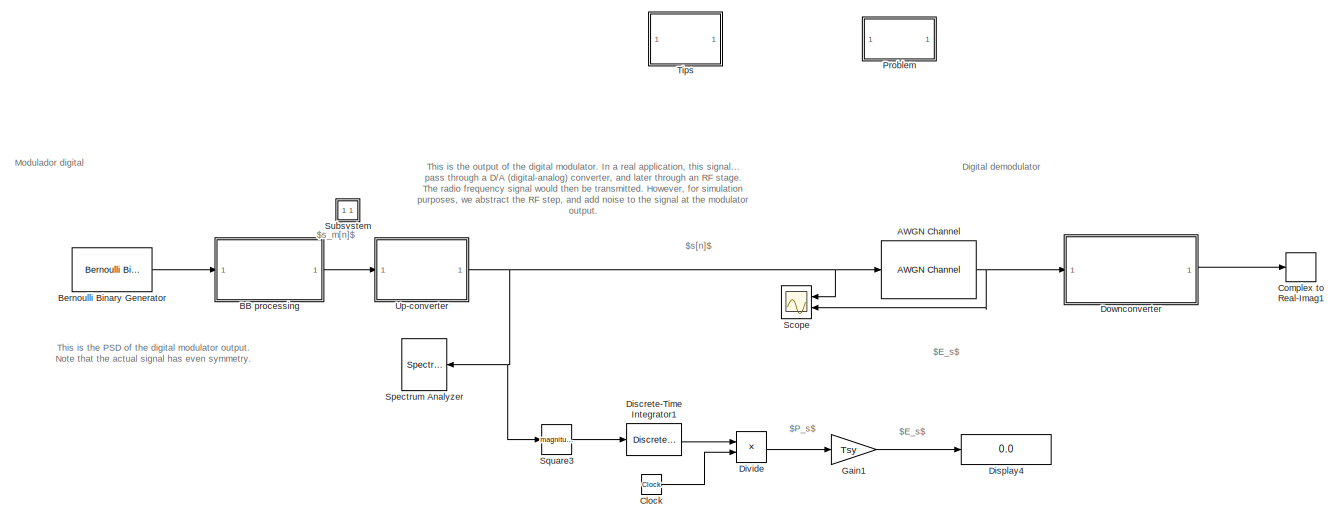
[diagram: root canvas - part 1/2, center side, full height]
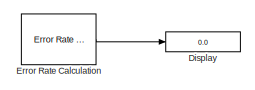
[diagram: root canvas - part 2/2, middle right region]
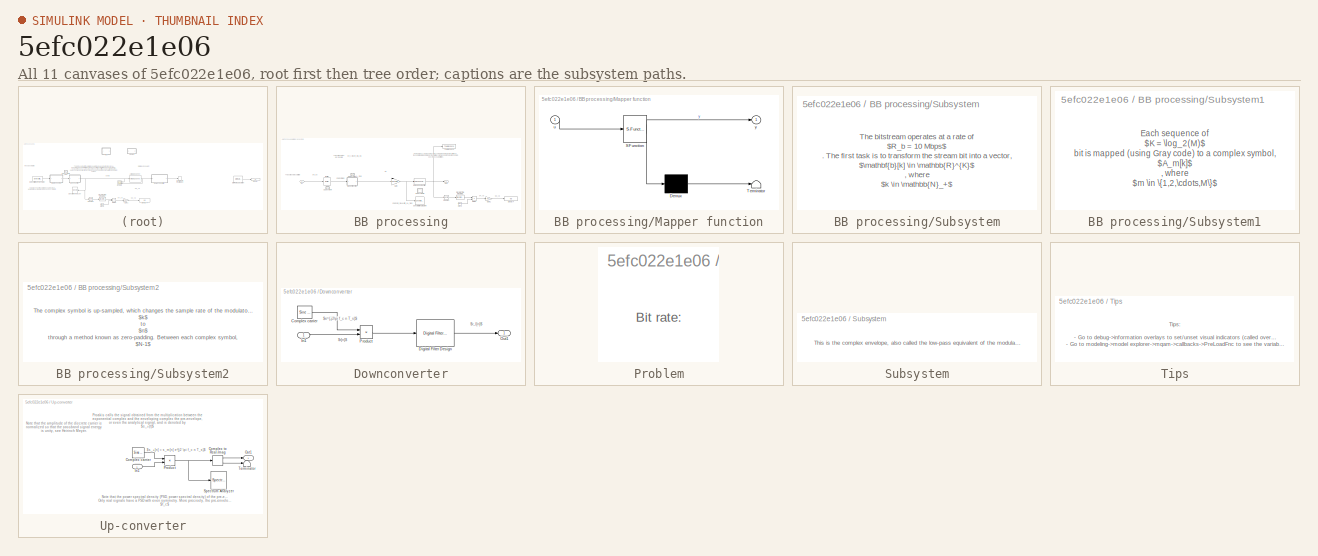
[diagram: thumbnail index - all 11 canvases of the model, root first then tree order]
MODEL slx_5efc022e1e06
KIND model
CONFIG AbsTol = auto
CONFIG EnableMultiTasking = off
CONFIG FixedStep = auto
CONFIG InitFcn = phi = 0; % phase offset
CONFIG MaxStep = auto
CONFIG MinStep = auto
CONFIG PreLoadFcn = %%% model parameters %%%\n\nRb = 10e6; % bit rate\nTb = 1/Rb; % bit interval\n\nM = 256; % constelation alphabet\nNb = log2(M); % number of bit per symbol\n\nRsy = Rb/Nb; % symbol rate\nTsy = 1/Rsy; % symbol time\n\nN = 100; % number of samples per symbol\n\nRsamp = N*Rsy; % sampling rate\nTsamp = 1/Rsamp; % samping interval\n\nfc = 1/(4*Tsamp); % carrier frequency\n\nEg = 5; % baseband pulse shaping energy\n\n%%% gr...<+447ch>
CONFIG RelTol = 1e-3
CONFIG SampleTimeConstraint = Unconstrained
CONFIG Solver = VariableStepAuto
CONFIG SolverName = VariableStepAuto
CONFIG StartTime = 0.0
CONFIG StopTime = 10
BLOCK [Reference] AWGN Channel  REF=commchan3/AWGN
Channel
  Commented = through
  Ports = [1, 1]
  SourceBlock = commchan3/AWGN\nChannel
  SourceProductBaseCode = CM
  SourceType = AWGN Channel
  UserDataPersistent = on
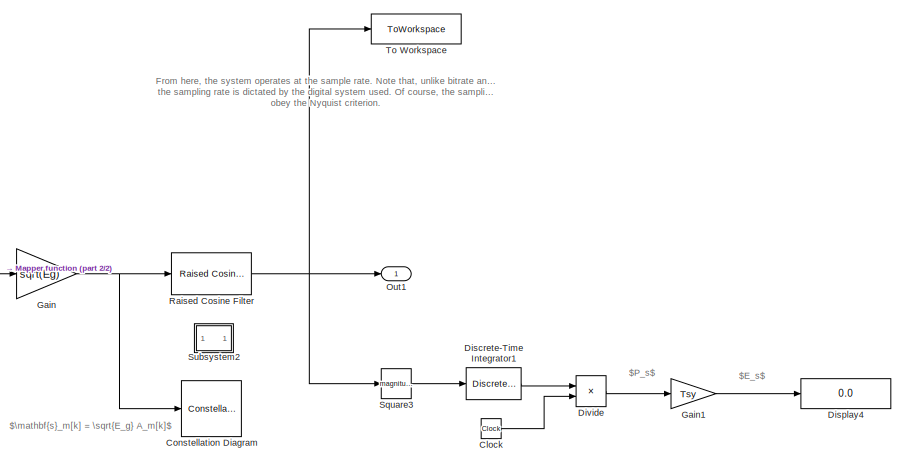
[diagram: BB processing - part 1/2, right side, full height]
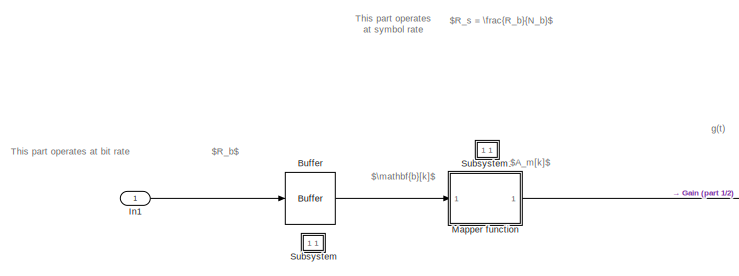
[diagram: BB processing - part 2/2, middle left region]
BLOCK [SubSystem] BB processing
  Ports = [1, 1]
  RequestExecContextInheritance = off
BLOCK [Buffer] BB processing/Buffer
  N = Nb
  OutputFrames = off
BLOCK [Clock] BB processing/Clock
BLOCK [ConstellationDiagram] BB processing/Constellation Diagram
  Ports = [1]
  ScopeSpecificationString = comm.scopes.ConstellationDiagramBlockCfg('CurrentConfiguration', extmgr.ConfigurationSet(extmgr.Configuration('Core','General UI',true,'FigureColor',[0.15686 0.15686 0.15686]),extmgr.Configuration('Core','Source UI',true),extmgr.Configuration('Sources','WiredSimulink',true),extmgr.Configuration('Sources','File',false),extmgr.Configuration('Sources','Workspace',false),extmgr.Configuration('Sources'...<+1511ch>
BLOCK [DiscreteIntegrator] BB processing/Discrete-Time Integrator1
  ICPrevOutput = DiscIntNeverNeededParam
  ICPrevScaledInput = DiscIntNeverNeededParam
  InitialConditionSetting = Auto
  IntegratorMethod = Integration: Trapezoidal
  Ports = [1, 1]
  SampleTime = -1
BLOCK [Display] BB processing/Display4
  Decimation = 1
  Ports = [1]
BLOCK [Product] BB processing/Divide
  Inputs = */
  Ports = [2, 1]
BLOCK [Gain] BB processing/Gain
  Gain = sqrt(Eg)
BLOCK [Gain] BB processing/Gain1
  Gain = Tsy
BLOCK [Inport] BB processing/In1
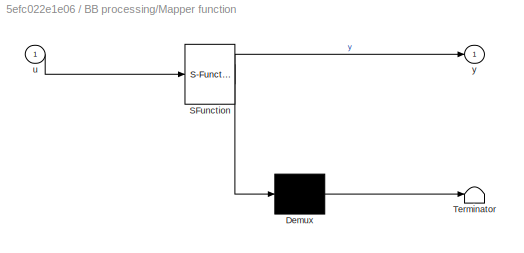
BLOCK [SubSystem] BB processing/Mapper function
  ErrorFcn = Stateflow.Translate.translate
  PermitHierarchicalResolution = ExplicitOnly
  Ports = [1, 1]
  RequestExecContextInheritance = off
  SFBlockType = MATLAB Function
  TreatAsAtomicUnit = on
BLOCK [Demux] BB processing/Mapper function/ Demux 
  Outputs = 1
  Ports = [1, 1]
BLOCK [S-Function] BB processing/Mapper function/ SFunction 
  EnableBusSupport = on
  FunctionName = sf_sfun
  Parameters = M,gray_codes
  PortCounts = [1 2]
  Ports = [1, 2]
  SFcnIsStateOwnerBlock = off
  SFunctionDeploymentMode = off
  Tag = Stateflow S-Function 2
BLOCK [Terminator] BB processing/Mapper function/ Terminator 
BLOCK [Inport] BB processing/Mapper function/u
BLOCK [Outport] BB processing/Mapper function/y
BLOCK [Outport] BB processing/Out1
BLOCK [Reference] BB processing/Raised Cosine Filter  REF=commfilt2/Raised Cosine
Transmit Filter
  Ports = [1, 1]
  SourceBlock = commfilt2/Raised Cosine\nTransmit Filter
  SourceProductBaseCode = CM
  SourceType = Raised Cosine Transmit Filter
BLOCK [Math] BB processing/Square3
  Operator = magnitude^2
  Ports = [1, 1]
BLOCK [SubSystem] BB processing/Subsystem
  Ports = []
  RequestExecContextInheritance = off
BLOCK [SubSystem] BB processing/Subsystem1
  Ports = []
  RequestExecContextInheritance = off
BLOCK [SubSystem] BB processing/Subsystem2
  Ports = []
  RequestExecContextInheritance = off
BLOCK [ToWorkspace] BB processing/To Workspace
  FixptAsFi = on
  MaxDataPoints = inf
  Ports = [1]
  SampleTime = -1
  SaveFormat = Timeseries
  VariableName = simout
BLOCK [Reference] Bernoulli Binary Generator  REF=commrandsrc3/Bernoulli Binary
Generator
  Ports = [0, 1]
  SourceBlock = commrandsrc3/Bernoulli Binary\nGenerator
  SourceProductBaseCode = CM
  SourceType = Bernoulli Binary Generator
BLOCK [Clock] Clock
BLOCK [ComplexToRealImag] Complex to Real-Imag1
  Ports = [1, 2]
BLOCK [DiscreteIntegrator] Discrete-Time Integrator1
  ICPrevOutput = DiscIntNeverNeededParam
  ICPrevScaledInput = DiscIntNeverNeededParam
  InitialConditionSetting = Auto
  IntegratorMethod = Integration: Trapezoidal
  Ports = [1, 1]
  SampleTime = -1
BLOCK [Display] Display
  Decimation = 1
  Ports = [1]
BLOCK [Display] Display4
  Decimation = 1
  Ports = [1]
BLOCK [Product] Divide
  Inputs = */
  Ports = [2, 1]
BLOCK [SubSystem] Downconverter
  Ports = [1, 1]
  RequestExecContextInheritance = off
BLOCK [Reference] Downconverter/Complex carrier  REF=dspsrcs4/Sine Wave
  Ports = [0, 1]
  SourceBlock = dspsrcs4/Sine Wave
  SourceProductBaseCode = DS
  SourceType = Sine Wave
BLOCK [Reference] Downconverter/Digital Filter Design  REF=dsparch4/Digital
Filter Design
  Ports = [1, 1]
  SourceBlock = dsparch4/Digital\nFilter Design
  SourceProductBaseCode = DS
  SourceType = Digital Filter Design
  UserDataPersistent = on
BLOCK [Inport] Downconverter/In1
BLOCK [Outport] Downconverter/Out1
BLOCK [Product] Downconverter/Product
  Ports = [2, 1]
BLOCK [Reference] Error Rate Calculation  REF=commsink2/Error Rate
Calculation
  Commented = on
  Ports = [2, 1]
  SourceBlock = commsink2/Error Rate\nCalculation
  SourceProductBaseCode = CM
  SourceType = Error Rate Calculation
BLOCK [Gain] Gain1
  Gain = Tsy
BLOCK [SubSystem] Problem
  Ports = []
  RequestExecContextInheritance = off
BLOCK [Scope] Scope
  Floating = off
  NumInputPorts = 2
  Ports = [2]
  ScopeSpecificationString = Simulink.scopes.TimeScopeBlockCfg('CurrentConfiguration', extmgr.ConfigurationSet(extmgr.Configuration('Core','General UI',true),extmgr.Configuration('Core','Source UI',true),extmgr.Configuration('Sources','WiredSimulink',true,'DataLoggingVariableName','ScopeData1'),extmgr.Configuration('Visuals','Time Domain',true,'SerializedDisplays',{struct('MinYLimReal','-5.56615','MaxYLimReal','5.56629','YLab...<+1499ch>
BLOCK [SpectrumAnalyzer] Spectrum Analyzer
  Commented = on
  Ports = [1]
  ScopeSpecificationString = spbscopes.SpectrumAnalyzerBlockCfg('CurrentConfiguration', extmgr.ConfigurationSet(extmgr.Configuration('Core','General UI',true),extmgr.Configuration('Core','Source UI',true),extmgr.Configuration('Sources','WiredSimulink',true),extmgr.Configuration('Sources','Simulink',false),extmgr.Configuration('Sources','File',false),extmgr.Configuration('Sources','Workspace',false),extmgr.Configuration('Sourc...<+2852ch>
BLOCK [Math] Square3
  Operator = magnitude^2
  Ports = [1, 1]
BLOCK [SubSystem] Subsystem
  Ports = []
  RequestExecContextInheritance = off
BLOCK [SubSystem] Tips
  Ports = []
  RequestExecContextInheritance = off
BLOCK [SubSystem] Up-converter
  Ports = [1, 1]
  RequestExecContextInheritance = off
BLOCK [Reference] Up-converter/Complex carrier  REF=dspsrcs4/Sine Wave
  Ports = [0, 1]
  SourceBlock = dspsrcs4/Sine Wave
  SourceProductBaseCode = DS
  SourceType = Sine Wave
BLOCK [ComplexToRealImag] Up-converter/Complex to Real-Imag
  Ports = [1, 2]
BLOCK [Inport] Up-converter/In1
BLOCK [Outport] Up-converter/Out1
BLOCK [Product] Up-converter/Product
  Ports = [2, 1]
BLOCK [SpectrumAnalyzer] Up-converter/Spectrum Analyzer
  Commented = on
  Ports = [1]
  ScopeSpecificationString = spbscopes.SpectrumAnalyzerBlockCfg('CurrentConfiguration', extmgr.ConfigurationSet(extmgr.Configuration('Core','General UI',true),extmgr.Configuration('Core','Source UI',true),extmgr.Configuration('Sources','WiredSimulink',true),extmgr.Configuration('Sources','Simulink',false),extmgr.Configuration('Sources','File',false),extmgr.Configuration('Sources','Workspace',false),extmgr.Configuration('Sourc...<+2852ch>
BLOCK [Terminator] Up-converter/Terminator
ANNOTATION (root): $s[n]$
ANNOTATION (root): $s_m[n]$
ANNOTATION (root): $E_s$
ANNOTATION (root): $P_s$
ANNOTATION (root): Digital demodulator
ANNOTATION (root): Modulador digital
ANNOTATION (root): This is the PSD of the digital modulator output. Note that the actual signal has even symmetry.
ANNOTATION (root): This is the output of the digital modulator. In a real application, this signal would pass through a D/A (digital-analog) converter, and later through an RF stage. The radio frequency signal would then be transmitted. However, for simulation purposes, we abstract the RF step, and add noise to the signal at the modulator output.
ANNOTATION BB processing: $\mathbf{b}[k]$
ANNOTATION BB processing: $\mathbf{s}_m[k] = \sqrt{E_g} A_m[k]$
ANNOTATION BB processing: $A_m[k]$
ANNOTATION BB processing: $E_s$
ANNOTATION BB processing: $P_s$
ANNOTATION BB processing: $R_b$
ANNOTATION BB processing: $R_s = \frac{R_b}{N_b}$
ANNOTATION BB processing: From here, the system operates at the sample rate. Note that, unlike bitrate and symbol rate, the sampling rate is dictated by the digital system used. Of course, the sampling rate must obey the Nyquist criterion.
ANNOTATION BB processing: This part operates at symbol rate
ANNOTATION BB processing: This part operates at bit rate
ANNOTATION BB processing: g(t)
ANNOTATION BB processing/Subsystem: The bitstream operates at a rate of $R_b = 10 Mbps$ . The first task is to transform the stream bit into a vector, $\mathbf{b}[k] \in \mathbb{R}^{K}$ , where $k \in \mathbb{N}_+$ is the $k$ th set of $K = \log_2 (M)$ bits
ANNOTATION BB processing/Subsystem1: Each sequence of $K = \log_2(M)$ bit is mapped (using Gray code) to a complex symbol, $A_m[k]$ , where $m \in \{1,2,\cdots,M\}$ is the $m$ th complex symbol of the alphabet, and $k \in \mathbb{N}_+$ is the $k$ th transmitted symbol
ANNOTATION BB processing/Subsystem2: The complex symbol is up-sampled, which changes the sample rate of the modulator from $k$ to $n$ through a method known as zero-padding. Between each complex symbol, $N-1$ zeros are added. Therefore, the number of samples by symbols is $N$ . After that, the symbol train passes through a FIR filter whose impulse response, $g[n]$ , is the discrete function of raised cosine, where $n\in \mathbb{N}_+$...<+1458ch>
ANNOTATION Downconverter: $e^{-j2\pi f_c n T_s}$
ANNOTATION Downconverter: $r[n]$
ANNOTATION Downconverter: $r_l[n]$
ANNOTATION Problem: Bit rate:
ANNOTATION Subsystem: This is the complex envelope, also called the low-pass equivalent of the modulation scheme.
ANNOTATION Tips: Tips: - Go to debug->information overlays to set/unset visual indicators (called overlays). The main ones are: colors, timing legend, signals dimensions, base data types - Go to modeling->model explorer->mqam->callbacks->PreLoadFnc to see the variables declared in this Simulink model. They are visible in the workspace area of the main window. In addition they can also be changed in the command win...<+4ch>
ANNOTATION Up-converter: Note that the power spectral density (PSD, power spectral density) of the pre-envelope is not symmetric since it is complex. Only real signals have a PSD with even symmetry. More precisely, the pre-envelope is just shifting PSD by $f_c$
ANNOTATION Up-converter: Proakis calls the signal obtained from the multiplication between the exponential complex and the enveloping complex the pre-envelope, or even the analytical signal, and is denoted by $s_+(t)$
ANNOTATION Up-converter: $s_+[n] = s_m[n] e^{j2 \pi f_c n T_s}$
ANNOTATION Up-converter: Note that the amplitude of the discrete carrier is normalized so that the passband signal energy is unity, see Heirinch Meyer.
NET AWGN Channel:1 -> Downconverter:1, Scope:2
LINE BB processing/Buffer:1 -> BB processing/Mapper function:1
LINE BB processing/Clock:1 -> BB processing/Divide:2
LINE BB processing/Discrete-Time Integrator1:1 -> BB processing/Divide:1
LINE BB processing/Divide:1 -> BB processing/Gain1:1
LINE BB processing/Gain1:1 -> BB processing/Display4:1
NET BB processing/Gain:1 -> BB processing/Constellation Diagram:1, BB processing/Raised Cosine Filter:1
LINE BB processing/In1:1 -> BB processing/Buffer:1
LINE BB processing/Mapper function:1 -> BB processing/Gain:1
NET BB processing/Raised Cosine Filter:1 -> BB processing/Out1:1, BB processing/Square3:1, BB processing/To Workspace:1
LINE BB processing/Square3:1 -> BB processing/Discrete-Time Integrator1:1
LINE BB processing:1 -> Up-converter:1
LINE Bernoulli Binary Generator:1 -> BB processing:1
LINE Clock:1 -> Divide:2
LINE Discrete-Time Integrator1:1 -> Divide:1
LINE Divide:1 -> Gain1:1
LINE Downconverter/Complex carrier:1 -> Downconverter/Product:1
LINE Downconverter/Digital Filter Design:1 -> Downconverter/Out1:1
LINE Downconverter/In1:1 -> Downconverter/Product:2
LINE Downconverter/Product:1 -> Downconverter/Digital Filter Design:1
LINE Downconverter:1 -> Complex to Real-Imag1:1
LINE Error Rate Calculation:1 -> Display:1
LINE Gain1:1 -> Display4:1
LINE Square3:1 -> Discrete-Time Integrator1:1
LINE Up-converter/Complex carrier:1 -> Up-converter/Product:1
LINE Up-converter/Complex to Real-Imag:1 -> Up-converter/Out1:1
LINE Up-converter/Complex to Real-Imag:2 -> Up-converter/Terminator:1
LINE Up-converter/In1:1 -> Up-converter/Product:2
NET Up-converter/Product:1 -> Up-converter/Complex to Real-Imag:1, Up-converter/Spectrum Analyzer:1
NET Up-converter:1 -> AWGN Channel:1, Scope:1, Spectrum Analyzer:1, Square3:1
note: NET lines group one-source signal fan-out (src -> all destinations, sorted); 1:1 wires keep LINE
CHART BB processing/Mapper function states=1 transitions=1
  STATE_LABEL 'eML_blk_kernel()'
  STATE_LABEL 'SCRIPT:\nfunction y = fcn(u, gray_codes, M)\n\nv = [u(1:end/2), u(end/2+1:end)];\nw = zeros(2,1);\n\nfor i = 1:2\n    for j = 1:size(gray_codes,2)\n        if all(gray_codes(:,j) == v(:,i))\n            w(i) = (j-1)*2 - (sqrt(M) - 1);\n            break\n        end\n    end\nend\n\ny = w(1) + 1j*w(2);\nend'
CHART  states=0 transitions=0
